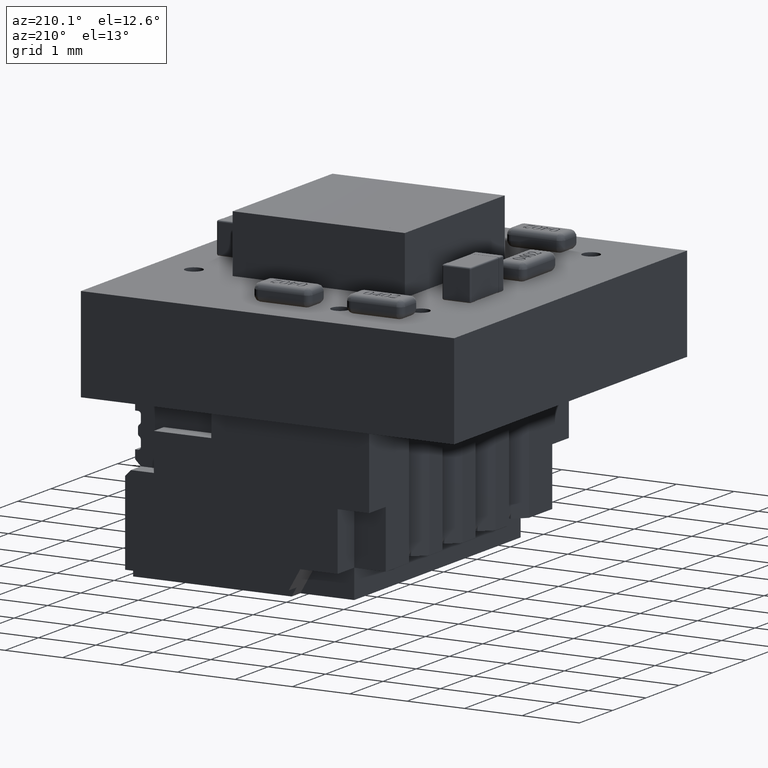
[diagram: clean part render]
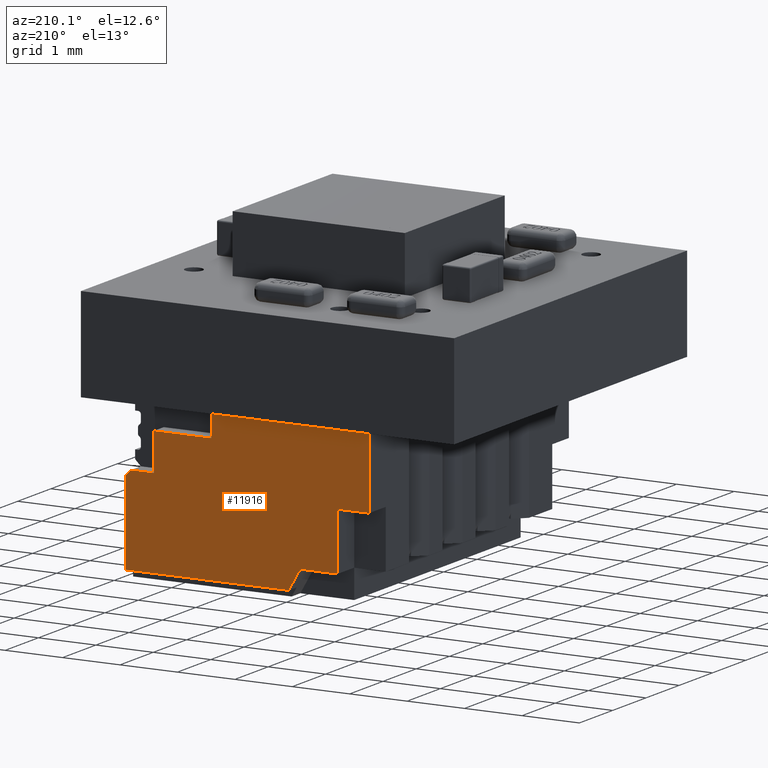
[diagram: same view with one face highlighted and labeled with its STEP entity id]
A machine part, auxiliary view. The second image highlights one B-rep face of the part: STEP entity #11916.
In plain terms, the highlighted planar face has unit normal (-0, -1, -0).
Its self-contained STEP definition (entity closure, byte-faithful):
#10683 = VERTEX_POINT('',#10684);
#10684 = CARTESIAN_POINT('',(-3.,3.105,3.895));
#10690 = EDGE_CURVE('',#10691,#10683,#10693,.T.);
#10691 = VERTEX_POINT('',#10692);
#10692 = CARTESIAN_POINT('',(-3.,1.655,3.895));
#10693 = LINE('',#10694,#10695);
#10694 = CARTESIAN_POINT('',(-3.,3.255,3.895));
#10695 = VECTOR('',#10696,1.);
#10696 = DIRECTION('',(2.481353770413E-029,1.,3.491483361109E-015));
#11406 = VERTEX_POINT('',#11407);
#11407 = CARTESIAN_POINT('',(-3.,0.47,2.395));
#11413 = EDGE_CURVE('',#11414,#11406,#11416,.T.);
#11414 = VERTEX_POINT('',#11415);
#11415 = CARTESIAN_POINT('',(-3.,0.47,-0.355));
#11416 = LINE('',#11417,#11418);
#11417 = CARTESIAN_POINT('',(-3.,0.47,-1.055));
#11418 = VECTOR('',#11419,1.);
#11419 = DIRECTION('',(-0.E+000,-0.E+000,1.));
#11882 = EDGE_CURVE('',#11883,#11406,#11885,.T.);
#11883 = VERTEX_POINT('',#11884);
#11884 = CARTESIAN_POINT('',(-3.,0.905,2.395));
#11885 = LINE('',#11886,#11887);
#11886 = CARTESIAN_POINT('',(-3.,3.255,2.395));
#11887 = VECTOR('',#11888,1.);
#11888 = DIRECTION('',(7.125597826469E-031,-1.,-5.121204094873E-045));
#11916 = ADVANCED_FACE('',(#11917),#11998,.F.);
#11917 = FACE_BOUND('',#11918,.T.);
#11918 = EDGE_LOOP('',(#11919,#11920,#11928,#11936,#11944,#11952,#11960,
    #11966,#11967,#11968,#11976,#11984,#11992));
#11919 = ORIENTED_EDGE('',*,*,#10690,.T.);
#11920 = ORIENTED_EDGE('',*,*,#11921,.F.);
#11921 = EDGE_CURVE('',#11922,#10683,#11924,.T.);
#11922 = VERTEX_POINT('',#11923);
#11923 = CARTESIAN_POINT('',(-3.,3.105,1.047072594216));
#11924 = LINE('',#11925,#11926);
#11925 = CARTESIAN_POINT('',(-3.,3.105,-1.055));
#11926 = VECTOR('',#11927,1.);
#11927 = DIRECTION('',(-0.E+000,-0.E+000,1.));
#11928 = ORIENTED_EDGE('',*,*,#11929,.F.);
#11929 = EDGE_CURVE('',#11930,#11922,#11932,.T.);
#11930 = VERTEX_POINT('',#11931);
#11931 = CARTESIAN_POINT('',(-3.,2.755,0.845));
#11932 = LINE('',#11933,#11934);
#11933 = CARTESIAN_POINT('',(-3.,2.755,0.845));
#11934 = VECTOR('',#11935,1.);
#11935 = DIRECTION('',(3.755786496843E-015,0.866025403784,0.5));
#11936 = ORIENTED_EDGE('',*,*,#11937,.F.);
#11937 = EDGE_CURVE('',#11938,#11930,#11940,.T.);
#11938 = VERTEX_POINT('',#11939);
#11939 = CARTESIAN_POINT('',(-3.,2.755,0.195));
#11940 = LINE('',#11941,#11942);
#11941 = CARTESIAN_POINT('',(-3.,2.755,-0.355));
#11942 = VECTOR('',#11943,1.);
#11943 = DIRECTION('',(7.18705183704E-015,-0.E+000,1.));
#11944 = ORIENTED_EDGE('',*,*,#11945,.F.);
#11945 = EDGE_CURVE('',#11946,#11938,#11948,.T.);
#11946 = VERTEX_POINT('',#11947);
#11947 = CARTESIAN_POINT('',(-3.,1.755,0.195));
#11948 = LINE('',#11949,#11950);
#11949 = CARTESIAN_POINT('',(-3.,3.255,0.195));
#11950 = VECTOR('',#11951,1.);
#11951 = DIRECTION('',(-7.125597826469E-031,1.,5.121204094873E-045));
#11952 = ORIENTED_EDGE('',*,*,#11953,.F.);
#11953 = EDGE_CURVE('',#11954,#11946,#11956,.T.);
#11954 = VERTEX_POINT('',#11955);
#11955 = CARTESIAN_POINT('',(-3.,1.755,-0.355));
#11956 = LINE('',#11957,#11958);
#11957 = CARTESIAN_POINT('',(-3.,1.755,-0.355));
#11958 = VECTOR('',#11959,1.);
#11959 = DIRECTION('',(7.18705183704E-015,-0.E+000,1.));
#11960 = ORIENTED_EDGE('',*,*,#11961,.T.);
#11961 = EDGE_CURVE('',#11954,#11414,#11962,.T.);
#11962 = LINE('',#11963,#11964);
#11963 = CARTESIAN_POINT('',(-3.,3.255,-0.355));
#11964 = VECTOR('',#11965,1.);
#11965 = DIRECTION('',(-2.480848139264E-029,-1.,-3.491483361109E-015));
#11966 = ORIENTED_EDGE('',*,*,#11413,.T.);
#11967 = ORIENTED_EDGE('',*,*,#11882,.F.);
#11968 = ORIENTED_EDGE('',*,*,#11969,.F.);
#11969 = EDGE_CURVE('',#11970,#11883,#11972,.T.);
#11970 = VERTEX_POINT('',#11971);
#11971 = CARTESIAN_POINT('',(-3.,0.905,3.395));
#11972 = LINE('',#11973,#11974);
#11973 = CARTESIAN_POINT('',(-3.,0.905,-0.355));
#11974 = VECTOR('',#11975,1.);
#11975 = DIRECTION('',(-7.18705183704E-015,0.E+000,-1.));
#11976 = ORIENTED_EDGE('',*,*,#11977,.F.);
#11977 = EDGE_CURVE('',#11978,#11970,#11980,.T.);
#11978 = VERTEX_POINT('',#11979);
#11979 = CARTESIAN_POINT('',(-3.,1.555,3.395));
#11980 = LINE('',#11981,#11982);
#11981 = CARTESIAN_POINT('',(-3.,3.255,3.395));
#11982 = VECTOR('',#11983,1.);
#11983 = DIRECTION('',(7.125597826469E-031,-1.,-5.121204094873E-045));
#11984 = ORIENTED_EDGE('',*,*,#11985,.F.);
#11985 = EDGE_CURVE('',#11986,#11978,#11988,.T.);
#11986 = VERTEX_POINT('',#11987);
#11987 = CARTESIAN_POINT('',(-3.,1.555,3.795));
#11988 = LINE('',#11989,#11990);
#11989 = CARTESIAN_POINT('',(-3.,1.555,-0.355));
#11990 = VECTOR('',#11991,1.);
#11991 = DIRECTION('',(-7.18705183704E-015,0.E+000,-1.));
#11992 = ORIENTED_EDGE('',*,*,#11993,.T.);
#11993 = EDGE_CURVE('',#11986,#10691,#11994,.T.);
#11994 = LINE('',#11995,#11996);
#11995 = CARTESIAN_POINT('',(-3.,1.555,3.795));
#11996 = VECTOR('',#11997,1.);
#11997 = DIRECTION('',(5.08201309071E-015,0.707106781187,0.707106781187)
  );
#11998 = PLANE('',#11999);
#11999 = AXIS2_PLACEMENT_3D('',#12000,#12001,#12002);
#12000 = CARTESIAN_POINT('',(-3.,3.255,-0.355));
#12001 = DIRECTION('',(1.,7.125597826469E-031,-7.18705183704E-015));
#12002 = DIRECTION('',(-7.18705183704E-015,0.E+000,-1.));